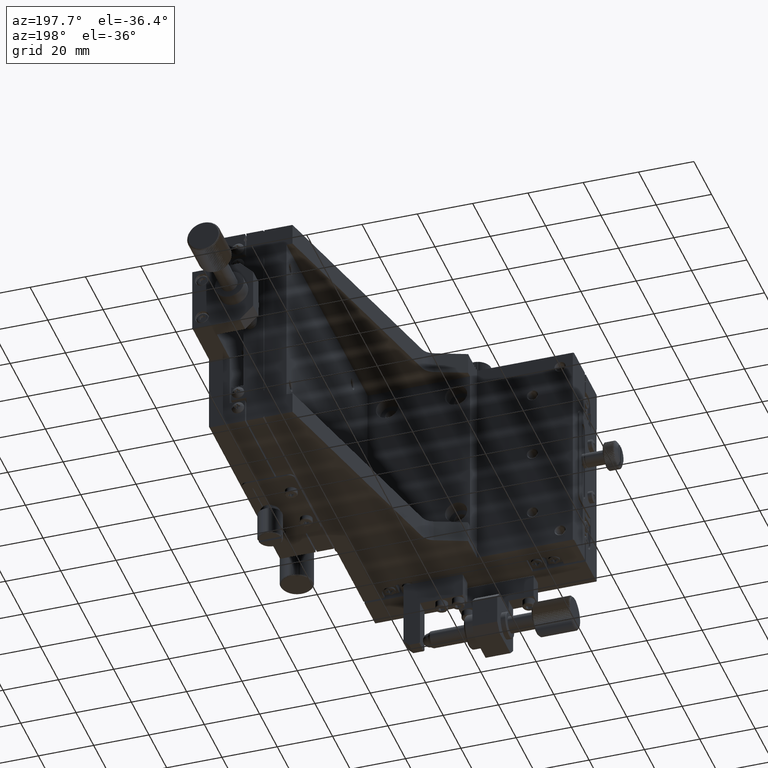
[diagram: clean part render]
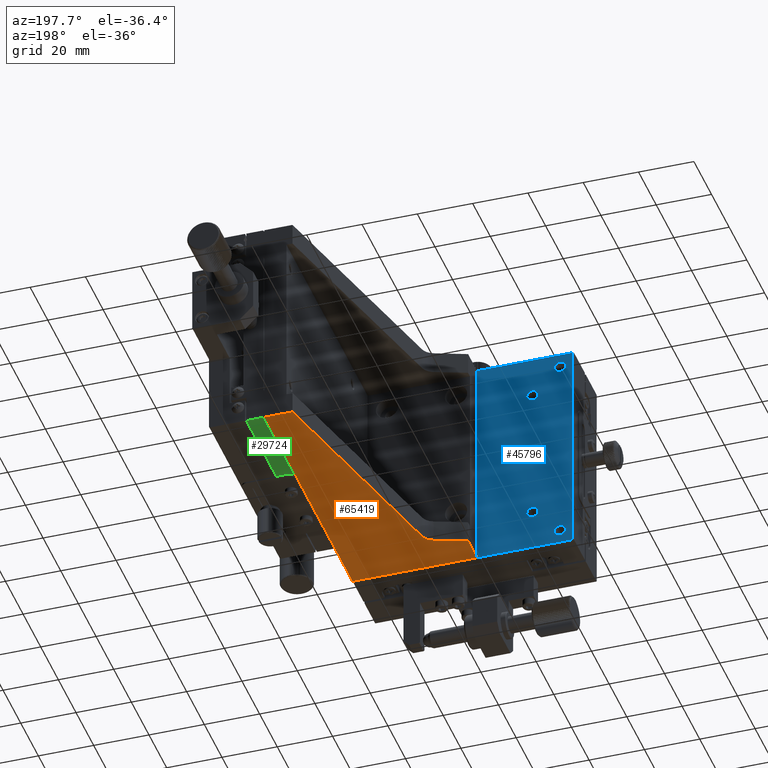
[diagram: same view with three faces highlighted in distinct colors, each labeled with its STEP entity id]
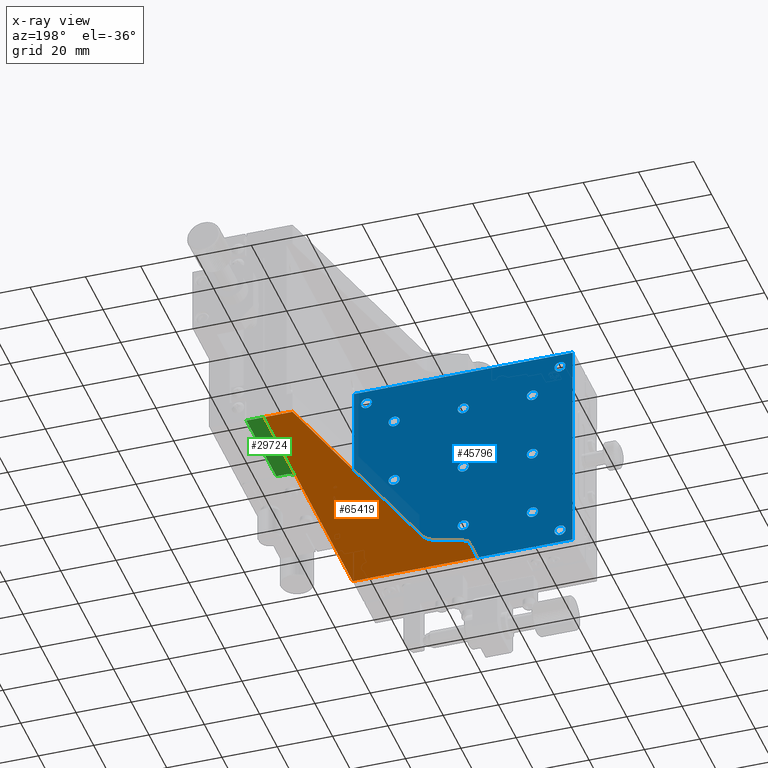
[diagram: x-ray of the same camera — body ghosted, the three highlighted faces saturated]
A machine part, auxiliary view with three faces highlighted in distinct colors.
The next image is the same camera in x-ray (body ghosted, the three faces saturated) — at least one of them is partly hidden behind the body in this view.
Their STEP definitions:

[orange] entity #65419 — the highlighted planar face has unit normal (0, 0, 1).
#627 = EDGE_CURVE ( 'NONE', #48782, #6501, #43525, .T. ) ;
#2172 = CARTESIAN_POINT ( 'NONE',  ( -33.84758970002791045, 14.22078538577843965, -80.00000000000000000 ) ) ;
#4180 = CARTESIAN_POINT ( 'NONE',  ( -35.55755648129589730, 18.91929723603060154, -80.00000000000000000 ) ) ;
#4685 = CARTESIAN_POINT ( 'NONE',  ( -33.84758969651681326, 14.22078538705625839, -80.00000000000000000 ) ) ;
#4923 = DIRECTION ( 'NONE',  ( 1.000000000000000000, 0.000000000000000000, 0.000000000000000000 ) ) ;
#5875 = LINE ( 'NONE', #30273, #35175 ) ;
#6501 = VERTEX_POINT ( 'NONE', #4685 ) ;
#6828 = CARTESIAN_POINT ( 'NONE',  ( 0.000000000000000000, 100.0000000000000000, -80.00000000000000000 ) ) ;
#12205 = FACE_OUTER_BOUND ( 'NONE', #19752, .T. ) ;
#13529 = VECTOR ( 'NONE', #4923, 1000.000000000000000 ) ;
#15316 = ORIENTED_EDGE ( 'NONE', *, *, #48433, .F. ) ;
#17005 = DIRECTION ( 'NONE',  ( 0.000000000000000000, 0.000000000000000000, 1.000000000000000000 ) ) ;
#17790 = CARTESIAN_POINT ( 'NONE',  ( -35.55755648129589730, 18.91929723603060154, -80.00000000000000000 ) ) ;
#18811 = ORIENTED_EDGE ( 'NONE', *, *, #627, .F. ) ;
#19752 = EDGE_LOOP ( 'NONE', ( #40759, #77548, #67006, #59568, #15316, #58806, #18811 ) ) ;
#24715 = EDGE_CURVE ( 'NONE', #26044, #36407, #37207, .T. ) ;
#25908 = VECTOR ( 'NONE', #42558, 1000.000000000000000 ) ;
#26044 = VERTEX_POINT ( 'NONE', #73003 ) ;
#26546 = DIRECTION ( 'NONE',  ( -0.9397023695393047493, -0.3419933576580336254, 0.000000000000000000 ) ) ;
#28898 = CARTESIAN_POINT ( 'NONE',  ( -45.00000000000000711, 10.16200000000000614, -80.00000000000000000 ) ) ;
#29350 = DIRECTION ( 'NONE',  ( 1.000000000000000000, 6.938893903907227392E-16, 0.000000000000000000 ) ) ;
#29870 = EDGE_CURVE ( 'NONE', #59090, #78316, #46088, .T. ) ;
#30273 = CARTESIAN_POINT ( 'NONE',  ( 0.000000000000000000, 0.000000000000000000, -80.00000000000000000 ) ) ;
#30578 = LINE ( 'NONE', #67670, #25908 ) ;
#32389 = DIRECTION ( 'NONE',  ( -1.000000000000000000, -0.000000000000000000, 0.000000000000000000 ) ) ;
#33992 = LINE ( 'NONE', #63133, #51523 ) ;
#35175 = VECTOR ( 'NONE', #54617, 1000.000000000000000 ) ;
#36407 = VERTEX_POINT ( 'NONE', #58267 ) ;
#36763 = CARTESIAN_POINT ( 'NONE',  ( -5.204170427930421283E-15, 0.000000000000000000, -80.00000000000000000 ) ) ;
#37207 = LINE ( 'NONE', #6828, #38187 ) ;
#38187 = VECTOR ( 'NONE', #32389, 1000.000000000000000 ) ;
#40759 = ORIENTED_EDGE ( 'NONE', *, *, #41323, .F. ) ;
#41323 = EDGE_CURVE ( 'NONE', #36407, #48782, #33992, .T. ) ;
#42558 = DIRECTION ( 'NONE',  ( 0.000000000000000000, -1.000000000000000000, -0.000000000000000000 ) ) ;
#43525 = CIRCLE ( 'NONE', #62656, 5.000000000000000888 ) ;
#46088 = LINE ( 'NONE', #65622, #13529 ) ;
#48208 = CARTESIAN_POINT ( 'NONE',  ( -30.70607506585908908, 17.70969892432869486, -80.00000000000000000 ) ) ;
#48433 = EDGE_CURVE ( 'NONE', #70977, #59090, #30578, .T. ) ;
#48535 = DIRECTION ( 'NONE',  ( 1.000000000000000000, 0.000000000000000000, -0.000000000000000000 ) ) ;
#48782 = VERTEX_POINT ( 'NONE', #48208 ) ;
#51523 = VECTOR ( 'NONE', #58322, 999.9999999999998863 ) ;
#54089 = VECTOR ( 'NONE', #26546, 1000.000000000000114 ) ;
#54617 = DIRECTION ( 'NONE',  ( 0.000000000000000000, 1.000000000000000000, 0.000000000000000000 ) ) ;
#58267 = CARTESIAN_POINT ( 'NONE',  ( -10.18900000000000361, 100.0000000000000000, -80.00000000000000000 ) ) ;
#58322 = DIRECTION ( 'NONE',  ( -0.2419196603509508881, -0.9702962835833602862, 0.000000000000000000 ) ) ;
#58806 = ORIENTED_EDGE ( 'NONE', *, *, #59545, .F. ) ;
#59090 = VERTEX_POINT ( 'NONE', #76117 ) ;
#59545 = EDGE_CURVE ( 'NONE', #6501, #70977, #64029, .T. ) ;
#59568 = ORIENTED_EDGE ( 'NONE', *, *, #29870, .F. ) ;
#60511 = PLANE ( 'NONE',  #76283 ) ;
#61080 = EDGE_CURVE ( 'NONE', #78316, #26044, #5875, .T. ) ;
#62656 = AXIS2_PLACEMENT_3D ( 'NONE', #4180, #71270, #29350 ) ;
#63133 = CARTESIAN_POINT ( 'NONE',  ( -10.18900000000000361, 100.0000000000000000, -80.00000000000000000 ) ) ;
#64029 = LINE ( 'NONE', #2172, #54089 ) ;
#65419 = ADVANCED_FACE ( 'NONE', ( #12205 ), #60511, .F. ) ;
#65622 = CARTESIAN_POINT ( 'NONE',  ( -45.00000000000000000, 0.000000000000000000, -80.00000000000000000 ) ) ;
#67006 = ORIENTED_EDGE ( 'NONE', *, *, #61080, .F. ) ;
#67670 = CARTESIAN_POINT ( 'NONE',  ( -45.00000000000000711, 18.91929723603060154, -80.00000000000000000 ) ) ;
#70977 = VERTEX_POINT ( 'NONE', #28898 ) ;
#71270 = DIRECTION ( 'NONE',  ( -0.000000000000000000, -0.000000000000000000, -1.000000000000000000 ) ) ;
#73003 = CARTESIAN_POINT ( 'NONE',  ( -4.336808689942017736E-15, 100.0000000000000000, -80.00000000000000000 ) ) ;
#76117 = CARTESIAN_POINT ( 'NONE',  ( -45.00000000000000000, 0.000000000000000000, -80.00000000000000000 ) ) ;
#76283 = AXIS2_PLACEMENT_3D ( 'NONE', #17790, #17005, #48535 ) ;
#77548 = ORIENTED_EDGE ( 'NONE', *, *, #24715, .F. ) ;
#78316 = VERTEX_POINT ( 'NONE', #36763 ) ;

[blue] entity #45796 — the highlighted planar face has unit normal (0, -1, -0).
#747 = CARTESIAN_POINT ( 'NONE',  ( -75.00000000000000000, -1.136868377216160297E-10, -75.00000000000000000 ) ) ;
#1515 = VERTEX_POINT ( 'NONE', #50227 ) ;
#1551 = EDGE_CURVE ( 'NONE', #63320, #11144, #41023, .T. ) ;
#3029 = CARTESIAN_POINT ( 'NONE',  ( -40.00000000000000000, 0.000000000000000000, -40.00000000000000000 ) ) ;
#3565 = FACE_BOUND ( 'NONE', #56424, .T. ) ;
#3851 = VERTEX_POINT ( 'NONE', #29025 ) ;
#3943 = DIRECTION ( 'NONE',  ( 0.000000000000000000, 1.000000000000000000, 0.000000000000000000 ) ) ;
#4132 = LINE ( 'NONE', #46486, #33252 ) ;
#4560 = CIRCLE ( 'NONE', #31425, 1.999999999964072295 ) ;
#4921 = CIRCLE ( 'NONE', #15129, 2.000000000009549694 ) ;
#5123 = FACE_BOUND ( 'NONE', #34600, .T. ) ;
#5131 = CIRCLE ( 'NONE', #49789, 1.999999999952706276 ) ;
#5610 = VERTEX_POINT ( 'NONE', #10427 ) ;
#5782 = DIRECTION ( 'NONE',  ( 1.000000000000000000, -0.000000000000000000, 0.000000000000000000 ) ) ;
#7059 = VERTEX_POINT ( 'NONE', #16057 ) ;
#8558 = DIRECTION ( 'NONE',  ( 0.000000000000000000, 0.000000000000000000, 1.000000000000000000 ) ) ;
#8860 = EDGE_CURVE ( 'NONE', #38437, #38437, #20335, .T. ) ;
#10337 = DIRECTION ( 'NONE',  ( 0.000000000000000000, 0.000000000000000000, 1.000000000000000000 ) ) ;
#10345 = FACE_BOUND ( 'NONE', #12818, .T. ) ;
#10427 = CARTESIAN_POINT ( 'NONE',  ( -40.00000000000000000, 0.000000000000000000, -42.00000000000000000 ) ) ;
#10497 = VECTOR ( 'NONE', #40632, 1000.000000000000000 ) ;
#10733 = CARTESIAN_POINT ( 'NONE',  ( -40.00000000000000000, -3.638062073818559838E-11, -15.00000000000000000 ) ) ;
#10740 = FACE_BOUND ( 'NONE', #58387, .T. ) ;
#11129 = FACE_BOUND ( 'NONE', #50574, .T. ) ;
#11144 = VERTEX_POINT ( 'NONE', #41133 ) ;
#12818 = EDGE_LOOP ( 'NONE', ( #25944 ) ) ;
#15129 = AXIS2_PLACEMENT_3D ( 'NONE', #62480, #50520, #44535 ) ;
#15319 = ORIENTED_EDGE ( 'NONE', *, *, #56785, .F. ) ;
#15474 = AXIS2_PLACEMENT_3D ( 'NONE', #10733, #3943, #10337 ) ;
#15945 = AXIS2_PLACEMENT_3D ( 'NONE', #68870, #45312, #8558 ) ;
#16057 = CARTESIAN_POINT ( 'NONE',  ( -79.50000000000000000, 0.000000000000000000, -80.00000000000000000 ) ) ;
#16725 = FACE_BOUND ( 'NONE', #29641, .T. ) ;
#17116 = CARTESIAN_POINT ( 'NONE',  ( -75.00000000000000000, -1.136868377216160297E-10, -73.00000000003592504 ) ) ;
#17123 = DIRECTION ( 'NONE',  ( 0.000000000000000000, 0.000000000000000000, -1.000000000000000000 ) ) ;
#17380 = CARTESIAN_POINT ( 'NONE',  ( -79.50000000000000000, 0.000000000000000000, -80.00000000000000000 ) ) ;
#17485 = EDGE_CURVE ( 'NONE', #64748, #64748, #23591, .T. ) ;
#17908 = AXIS2_PLACEMENT_3D ( 'NONE', #77793, #71822, #17123 ) ;
#18288 = CARTESIAN_POINT ( 'NONE',  ( -40.00000000000000000, -3.638062073818559838E-11, -63.00000000004729372 ) ) ;
#19019 = DIRECTION ( 'NONE',  ( 0.000000000000000000, 1.000000000000000000, 0.000000000000000000 ) ) ;
#19325 = ORIENTED_EDGE ( 'NONE', *, *, #46850, .F. ) ;
#19419 = CARTESIAN_POINT ( 'NONE',  ( -65.00000000000000000, -5.911937606128958578E-11, -65.00000000000000000 ) ) ;
#19934 = ORIENTED_EDGE ( 'NONE', *, *, #53044, .F. ) ;
#20335 = CIRCLE ( 'NONE', #64955, 1.999999999895862857 ) ;
#20607 = AXIS2_PLACEMENT_3D ( 'NONE', #747, #31501, #60644 ) ;
#21450 = VERTEX_POINT ( 'NONE', #68971 ) ;
#22044 = LINE ( 'NONE', #53959, #38952 ) ;
#22142 = AXIS2_PLACEMENT_3D ( 'NONE', #66677, #49522, #24761 ) ;
#22458 = EDGE_CURVE ( 'NONE', #5610, #5610, #43766, .T. ) ;
#22647 = CARTESIAN_POINT ( 'NONE',  ( -0.5000000000000004441, 0.000000000000000000, -80.00000000000000000 ) ) ;
#23054 = CIRCLE ( 'NONE', #77859, 2.000000000009549694 ) ;
#23119 = FACE_BOUND ( 'NONE', #50649, .T. ) ;
#23591 = CIRCLE ( 'NONE', #15945, 1.999999999895862857 ) ;
#24761 = DIRECTION ( 'NONE',  ( 0.000000000000000000, 0.000000000000000000, 1.000000000000000000 ) ) ;
#25056 = EDGE_CURVE ( 'NONE', #34822, #34822, #33105, .T. ) ;
#25087 = VERTEX_POINT ( 'NONE', #18288 ) ;
#25944 = ORIENTED_EDGE ( 'NONE', *, *, #8860, .F. ) ;
#26211 = EDGE_CURVE ( 'NONE', #31571, #31571, #60697, .T. ) ;
#28426 = EDGE_LOOP ( 'NONE', ( #72925 ) ) ;
#28899 = CIRCLE ( 'NONE', #40347, 2.000000000009549694 ) ;
#29025 = CARTESIAN_POINT ( 'NONE',  ( -40.00000000000000000, -3.638062073818559838E-11, -13.00000000004729372 ) ) ;
#29519 = ORIENTED_EDGE ( 'NONE', *, *, #78330, .F. ) ;
#29641 = EDGE_LOOP ( 'NONE', ( #34178 ) ) ;
#30162 = DIRECTION ( 'NONE',  ( 0.000000000000000000, 0.000000000000000000, 1.000000000000000000 ) ) ;
#30194 = DIRECTION ( 'NONE',  ( 0.000000000000000000, 0.000000000000000000, 1.000000000000000000 ) ) ;
#30805 = VECTOR ( 'NONE', #5782, 1000.000000000000000 ) ;
#30821 = ORIENTED_EDGE ( 'NONE', *, *, #22458, .F. ) ;
#31177 = CARTESIAN_POINT ( 'NONE',  ( -65.00000000000000000, -5.911937606128958578E-11, -38.00000000004729372 ) ) ;
#31425 = AXIS2_PLACEMENT_3D ( 'NONE', #41181, #35980, #71506 ) ;
#31501 = DIRECTION ( 'NONE',  ( 0.000000000000000000, 1.000000000000000000, 0.000000000000000000 ) ) ;
#31571 = VERTEX_POINT ( 'NONE', #31177 ) ;
#32018 = EDGE_LOOP ( 'NONE', ( #29519 ) ) ;
#32448 = CARTESIAN_POINT ( 'NONE',  ( -5.000000000000000000, -6.139099645308121467E-11, -3.000000000104137143 ) ) ;
#32515 = EDGE_LOOP ( 'NONE', ( #19934 ) ) ;
#33105 = CIRCLE ( 'NONE', #61133, 1.999999999952706276 ) ;
#33252 = VECTOR ( 'NONE', #42362, 1000.000000000000000 ) ;
#33778 = ORIENTED_EDGE ( 'NONE', *, *, #52327, .F. ) ;
#33938 = AXIS2_PLACEMENT_3D ( 'NONE', #45023, #46210, #70552 ) ;
#34115 = EDGE_CURVE ( 'NONE', #7059, #63320, #47730, .T. ) ;
#34178 = ORIENTED_EDGE ( 'NONE', *, *, #25056, .F. ) ;
#34600 = EDGE_LOOP ( 'NONE', ( #49995 ) ) ;
#34822 = VERTEX_POINT ( 'NONE', #59148 ) ;
#34830 = AXIS2_PLACEMENT_3D ( 'NONE', #3029, #56568, #45379 ) ;
#35129 = FACE_BOUND ( 'NONE', #49500, .T. ) ;
#35880 = CIRCLE ( 'NONE', #20607, 1.999999999964072295 ) ;
#35980 = DIRECTION ( 'NONE',  ( 0.000000000000000000, 1.000000000000000000, 0.000000000000000000 ) ) ;
#36253 = DIRECTION ( 'NONE',  ( 0.000000000000000000, 0.000000000000000000, 1.000000000000000000 ) ) ;
#38437 = VERTEX_POINT ( 'NONE', #62773 ) ;
#38510 = CARTESIAN_POINT ( 'NONE',  ( -65.00000000000000000, -5.911937606128958578E-11, -13.00000000004729372 ) ) ;
#38952 = VECTOR ( 'NONE', #47972, 1000.000000000000000 ) ;
#39074 = DIRECTION ( 'NONE',  ( 0.000000000000000000, 1.000000000000000000, 0.000000000000000000 ) ) ;
#39974 = CARTESIAN_POINT ( 'NONE',  ( -79.50000000000000000, 0.000000000000000000, 0.000000000000000000 ) ) ;
#40308 = VERTEX_POINT ( 'NONE', #17116 ) ;
#40347 = AXIS2_PLACEMENT_3D ( 'NONE', #61364, #54209, #36253 ) ;
#40632 = DIRECTION ( 'NONE',  ( -0.000000000000000000, -0.000000000000000000, 1.000000000000000000 ) ) ;
#41023 = LINE ( 'NONE', #22647, #10497 ) ;
#41133 = CARTESIAN_POINT ( 'NONE',  ( -0.5000000000000002220, 0.000000000000000000, 0.000000000000000000 ) ) ;
#41181 = CARTESIAN_POINT ( 'NONE',  ( -75.00000000000000000, -1.136868377216160297E-10, -5.000000000000000000 ) ) ;
#42362 = DIRECTION ( 'NONE',  ( -1.000000000000000000, 0.000000000000000000, -0.000000000000000000 ) ) ;
#42917 = DIRECTION ( 'NONE',  ( 0.000000000000000000, 1.000000000000000000, 0.000000000000000000 ) ) ;
#43142 = ORIENTED_EDGE ( 'NONE', *, *, #63517, .F. ) ;
#43740 = EDGE_CURVE ( 'NONE', #11144, #76979, #4132, .T. ) ;
#43766 = CIRCLE ( 'NONE', #34830, 2.000000000000001776 ) ;
#44099 = ORIENTED_EDGE ( 'NONE', *, *, #43740, .F. ) ;
#44111 = ORIENTED_EDGE ( 'NONE', *, *, #1551, .F. ) ;
#44535 = DIRECTION ( 'NONE',  ( 0.000000000000000000, 0.000000000000000000, 1.000000000000000000 ) ) ;
#45019 = CARTESIAN_POINT ( 'NONE',  ( -15.00000000000000000, -7.048528427588962586E-11, -37.99999999999045031 ) ) ;
#45023 = CARTESIAN_POINT ( 'NONE',  ( -65.00000000000000000, -5.911937606128958578E-11, -40.00000000000000000 ) ) ;
#45084 = EDGE_LOOP ( 'NONE', ( #15319 ) ) ;
#45312 = DIRECTION ( 'NONE',  ( 0.000000000000000000, 1.000000000000000000, 0.000000000000000000 ) ) ;
#45379 = DIRECTION ( 'NONE',  ( 0.000000000000000000, 0.000000000000000000, -1.000000000000000000 ) ) ;
#45796 = ADVANCED_FACE ( 'NONE', ( #23119, #71425, #58660, #11129, #16725, #70253, #35129, #5123, #10740, #10345, #3565, #59057, #53086, #53462 ), #65831, .F. ) ;
#46053 = EDGE_LOOP ( 'NONE', ( #62231, #33778, #44099, #44111 ) ) ;
#46210 = DIRECTION ( 'NONE',  ( 0.000000000000000000, 1.000000000000000000, 0.000000000000000000 ) ) ;
#46486 = CARTESIAN_POINT ( 'NONE',  ( -79.50000000000000000, 0.000000000000000000, 0.000000000000000000 ) ) ;
#46850 = EDGE_CURVE ( 'NONE', #40308, #40308, #35880, .T. ) ;
#47730 = LINE ( 'NONE', #17380, #30805 ) ;
#47972 = DIRECTION ( 'NONE',  ( 0.000000000000000000, 0.000000000000000000, -1.000000000000000000 ) ) ;
#48889 = CARTESIAN_POINT ( 'NONE',  ( -40.00000000000000000, -3.638062073818559838E-11, -65.00000000000000000 ) ) ;
#49500 = EDGE_LOOP ( 'NONE', ( #75898 ) ) ;
#49522 = DIRECTION ( 'NONE',  ( 0.000000000000000000, 1.000000000000000000, 0.000000000000000000 ) ) ;
#49789 = AXIS2_PLACEMENT_3D ( 'NONE', #48889, #42917, #30162 ) ;
#49995 = ORIENTED_EDGE ( 'NONE', *, *, #65679, .F. ) ;
#50227 = CARTESIAN_POINT ( 'NONE',  ( -15.00000000000000000, -7.048528427588962586E-11, -12.99999999999045031 ) ) ;
#50520 = DIRECTION ( 'NONE',  ( 0.000000000000000000, 1.000000000000000000, 0.000000000000000000 ) ) ;
#50574 = EDGE_LOOP ( 'NONE', ( #61072 ) ) ;
#50649 = EDGE_LOOP ( 'NONE', ( #30821 ) ) ;
#51007 = VERTEX_POINT ( 'NONE', #45019 ) ;
#52327 = EDGE_CURVE ( 'NONE', #76979, #7059, #22044, .T. ) ;
#53044 = EDGE_CURVE ( 'NONE', #72229, #72229, #4560, .T. ) ;
#53086 = FACE_BOUND ( 'NONE', #28426, .T. ) ;
#53462 = FACE_OUTER_BOUND ( 'NONE', #46053, .T. ) ;
#53959 = CARTESIAN_POINT ( 'NONE',  ( -79.50000000000000000, 0.000000000000000000, -80.00000000000000000 ) ) ;
#54209 = DIRECTION ( 'NONE',  ( 0.000000000000000000, 1.000000000000000000, 0.000000000000000000 ) ) ;
#55765 = DIRECTION ( 'NONE',  ( 0.000000000000000000, 0.000000000000000000, 1.000000000000000000 ) ) ;
#56161 = ORIENTED_EDGE ( 'NONE', *, *, #74752, .F. ) ;
#56424 = EDGE_LOOP ( 'NONE', ( #19325 ) ) ;
#56562 = CIRCLE ( 'NONE', #22142, 1.999999999952706276 ) ;
#56568 = DIRECTION ( 'NONE',  ( -0.000000000000000000, 1.000000000000000000, -0.000000000000000000 ) ) ;
#56785 = EDGE_CURVE ( 'NONE', #25087, #25087, #5131, .T. ) ;
#57593 = CIRCLE ( 'NONE', #15474, 1.999999999952706276 ) ;
#58387 = EDGE_LOOP ( 'NONE', ( #43142 ) ) ;
#58660 = FACE_BOUND ( 'NONE', #32018, .T. ) ;
#59057 = FACE_BOUND ( 'NONE', #32515, .T. ) ;
#59148 = CARTESIAN_POINT ( 'NONE',  ( -65.00000000000000000, -5.911937606128958578E-11, -63.00000000004729372 ) ) ;
#60223 = CARTESIAN_POINT ( 'NONE',  ( -75.00000000000000000, -1.136868377216160297E-10, -3.000000000035927705 ) ) ;
#60644 = DIRECTION ( 'NONE',  ( 0.000000000000000000, 0.000000000000000000, 1.000000000000000000 ) ) ;
#60697 = CIRCLE ( 'NONE', #33938, 1.999999999952706276 ) ;
#61072 = ORIENTED_EDGE ( 'NONE', *, *, #26211, .F. ) ;
#61133 = AXIS2_PLACEMENT_3D ( 'NONE', #19419, #19019, #55765 ) ;
#61364 = CARTESIAN_POINT ( 'NONE',  ( -15.00000000000000000, -7.048528427588962586E-11, -15.00000000000000000 ) ) ;
#61689 = DIRECTION ( 'NONE',  ( 0.000000000000000000, 1.000000000000000000, 0.000000000000000000 ) ) ;
#62225 = CARTESIAN_POINT ( 'NONE',  ( -5.000000000000009770, -6.140053743219908711E-11, -75.00000000000000000 ) ) ;
#62231 = ORIENTED_EDGE ( 'NONE', *, *, #34115, .F. ) ;
#62480 = CARTESIAN_POINT ( 'NONE',  ( -15.00000000000000000, -7.048528427588962586E-11, -40.00000000000000000 ) ) ;
#62773 = CARTESIAN_POINT ( 'NONE',  ( -5.000000000000009770, -6.140053743219908711E-11, -73.00000000010413714 ) ) ;
#63320 = VERTEX_POINT ( 'NONE', #64201 ) ;
#63401 = DIRECTION ( 'NONE',  ( 0.000000000000000000, 0.000000000000000000, 1.000000000000000000 ) ) ;
#63517 = EDGE_CURVE ( 'NONE', #1515, #1515, #28899, .T. ) ;
#64201 = CARTESIAN_POINT ( 'NONE',  ( -0.5000000000000002220, 0.000000000000000000, -80.00000000000000000 ) ) ;
#64748 = VERTEX_POINT ( 'NONE', #32448 ) ;
#64955 = AXIS2_PLACEMENT_3D ( 'NONE', #62225, #39074, #63401 ) ;
#65679 = EDGE_CURVE ( 'NONE', #51007, #51007, #4921, .T. ) ;
#65831 = PLANE ( 'NONE',  #17908 ) ;
#66677 = CARTESIAN_POINT ( 'NONE',  ( -65.00000000000000000, -5.911937606128958578E-11, -15.00000000000000000 ) ) ;
#67666 = CARTESIAN_POINT ( 'NONE',  ( -15.00000000000000000, -7.048528427588962586E-11, -65.00000000000000000 ) ) ;
#68589 = EDGE_CURVE ( 'NONE', #21450, #21450, #23054, .T. ) ;
#68870 = CARTESIAN_POINT ( 'NONE',  ( -5.000000000000000000, -6.139099645308121467E-11, -5.000000000000000000 ) ) ;
#68971 = CARTESIAN_POINT ( 'NONE',  ( -15.00000000000000000, -7.048528427588962586E-11, -62.99999999999045031 ) ) ;
#69650 = EDGE_LOOP ( 'NONE', ( #56161 ) ) ;
#70253 = FACE_BOUND ( 'NONE', #45084, .T. ) ;
#70552 = DIRECTION ( 'NONE',  ( 0.000000000000000000, 0.000000000000000000, 1.000000000000000000 ) ) ;
#71425 = FACE_BOUND ( 'NONE', #69650, .T. ) ;
#71506 = DIRECTION ( 'NONE',  ( 0.000000000000000000, 0.000000000000000000, 1.000000000000000000 ) ) ;
#71822 = DIRECTION ( 'NONE',  ( 0.000000000000000000, -1.000000000000000000, -0.000000000000000000 ) ) ;
#72229 = VERTEX_POINT ( 'NONE', #60223 ) ;
#72925 = ORIENTED_EDGE ( 'NONE', *, *, #17485, .F. ) ;
#74752 = EDGE_CURVE ( 'NONE', #3851, #3851, #57593, .T. ) ;
#75623 = VERTEX_POINT ( 'NONE', #38510 ) ;
#75898 = ORIENTED_EDGE ( 'NONE', *, *, #68589, .F. ) ;
#76979 = VERTEX_POINT ( 'NONE', #39974 ) ;
#77793 = CARTESIAN_POINT ( 'NONE',  ( -79.50000000000000000, 0.000000000000000000, -80.00000000000000000 ) ) ;
#77859 = AXIS2_PLACEMENT_3D ( 'NONE', #67666, #61689, #30194 ) ;
#78330 = EDGE_CURVE ( 'NONE', #75623, #75623, #56562, .T. ) ;

[green] entity #29724 — the highlighted planar face has unit normal (0, 0, 1).
#2219 = EDGE_CURVE ( 'NONE', #4766, #70611, #43188, .T. ) ;
#3124 = DIRECTION ( 'NONE',  ( -0.000000000000000000, 1.000000000000000000, 0.000000000000000000 ) ) ;
#3301 = AXIS2_PLACEMENT_3D ( 'NONE', #74877, #20566, #74460 ) ;
#4766 = VERTEX_POINT ( 'NONE', #31588 ) ;
#6140 = EDGE_CURVE ( 'NONE', #70611, #59705, #60794, .T. ) ;
#15683 = DIRECTION ( 'NONE',  ( 1.000000000000000000, 0.000000000000000000, 0.000000000000000000 ) ) ;
#19359 = DIRECTION ( 'NONE',  ( 1.000000000000000000, 0.000000000000000000, -0.000000000000000000 ) ) ;
#20403 = CARTESIAN_POINT ( 'NONE',  ( 0.5000000000000091038, 100.0000000000000000, -80.00000000000000000 ) ) ;
#20566 = DIRECTION ( 'NONE',  ( 0.000000000000000000, 0.000000000000000000, 1.000000000000000000 ) ) ;
#20683 = CARTESIAN_POINT ( 'NONE',  ( 0.5000000000000043299, 64.00000000000000000, -80.00000000000000000 ) ) ;
#21667 = DIRECTION ( 'NONE',  ( -0.000000000000000000, -0.000000000000000000, -1.000000000000000000 ) ) ;
#23684 = ORIENTED_EDGE ( 'NONE', *, *, #6140, .F. ) ;
#24960 = CARTESIAN_POINT ( 'NONE',  ( 6.500000000000010658, 100.0000000000000000, -80.00000000000000000 ) ) ;
#28856 = VECTOR ( 'NONE', #19359, 1000.000000000000000 ) ;
#29724 = ADVANCED_FACE ( 'NONE', ( #38147 ), #33327, .F. ) ;
#31115 = EDGE_LOOP ( 'NONE', ( #56270, #67461, #60373, #76016, #23684 ) ) ;
#31259 = CARTESIAN_POINT ( 'NONE',  ( 2.499999999999999556, 66.00000000000000000, -80.00000000000000000 ) ) ;
#31588 = CARTESIAN_POINT ( 'NONE',  ( 0.5000000000000092149, 100.0000000000000142, -80.00000000000000000 ) ) ;
#32141 = LINE ( 'NONE', #37344, #28856 ) ;
#32499 = CARTESIAN_POINT ( 'NONE',  ( 7.249945164661990127, 100.0000000000000000, -80.00000000000000000 ) ) ;
#32716 = AXIS2_PLACEMENT_3D ( 'NONE', #63205, #21667, #15683 ) ;
#33327 = PLANE ( 'NONE',  #3301 ) ;
#37344 = CARTESIAN_POINT ( 'NONE',  ( 6.500000000000009770, 66.00000000000000000, -80.00000000000000000 ) ) ;
#38147 = FACE_OUTER_BOUND ( 'NONE', #31115, .T. ) ;
#38489 = DIRECTION ( 'NONE',  ( -1.000000000000000000, -0.000000000000000000, -0.000000000000000000 ) ) ;
#43188 = LINE ( 'NONE', #20403, #75604 ) ;
#45647 = LINE ( 'NONE', #32499, #47864 ) ;
#45860 = LINE ( 'NONE', #57829, #72348 ) ;
#47864 = VECTOR ( 'NONE', #38489, 1000.000000000000000 ) ;
#49105 = CARTESIAN_POINT ( 'NONE',  ( 6.500000000000010658, 66.00000000000000000, -80.00000000000000000 ) ) ;
#54075 = EDGE_CURVE ( 'NONE', #55078, #77602, #45860, .T. ) ;
#55078 = VERTEX_POINT ( 'NONE', #49105 ) ;
#56270 = ORIENTED_EDGE ( 'NONE', *, *, #2219, .F. ) ;
#57829 = CARTESIAN_POINT ( 'NONE',  ( 6.500000000000010658, 100.0000000000000000, -80.00000000000000000 ) ) ;
#59705 = VERTEX_POINT ( 'NONE', #31259 ) ;
#60373 = ORIENTED_EDGE ( 'NONE', *, *, #54075, .F. ) ;
#60794 = CIRCLE ( 'NONE', #32716, 2.000000000000000444 ) ;
#61557 = EDGE_CURVE ( 'NONE', #59705, #55078, #32141, .T. ) ;
#62627 = EDGE_CURVE ( 'NONE', #77602, #4766, #45647, .T. ) ;
#63205 = CARTESIAN_POINT ( 'NONE',  ( 2.500000000000000000, 64.00000000000000000, -80.00000000000000000 ) ) ;
#67461 = ORIENTED_EDGE ( 'NONE', *, *, #62627, .F. ) ;
#68706 = DIRECTION ( 'NONE',  ( 0.000000000000000000, -1.000000000000000000, -0.000000000000000000 ) ) ;
#70611 = VERTEX_POINT ( 'NONE', #20683 ) ;
#72348 = VECTOR ( 'NONE', #3124, 1000.000000000000000 ) ;
#74460 = DIRECTION ( 'NONE',  ( 1.000000000000000000, 0.000000000000000000, -0.000000000000000000 ) ) ;
#74877 = CARTESIAN_POINT ( 'NONE',  ( 6.500000000000009770, 100.0000000000000000, -80.00000000000000000 ) ) ;
#75604 = VECTOR ( 'NONE', #68706, 1000.000000000000000 ) ;
#76016 = ORIENTED_EDGE ( 'NONE', *, *, #61557, .F. ) ;
#77602 = VERTEX_POINT ( 'NONE', #24960 ) ;